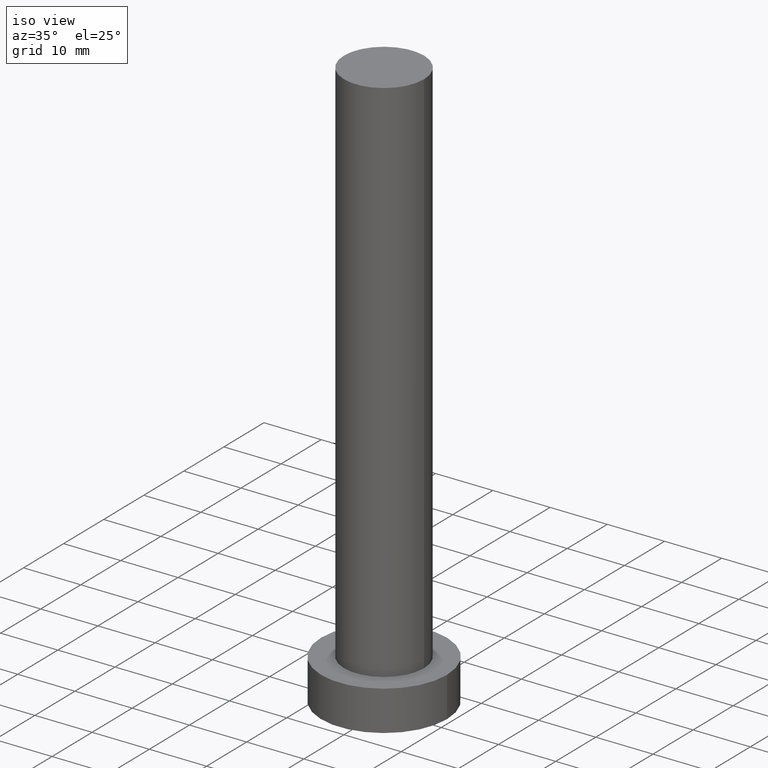
[diagram: clean part render]
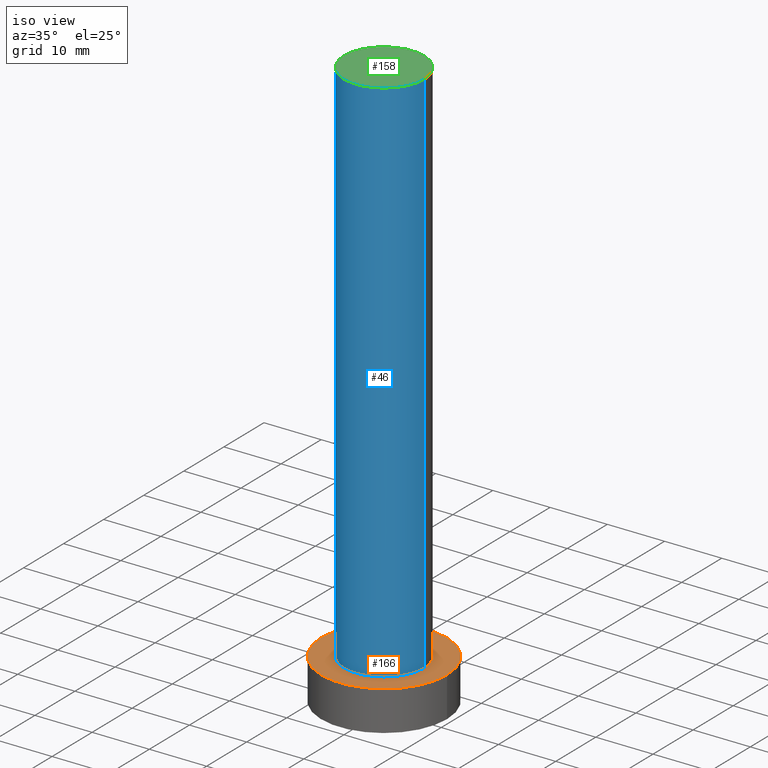
[diagram: same view with three faces highlighted in distinct colors, each labeled with its STEP entity id]
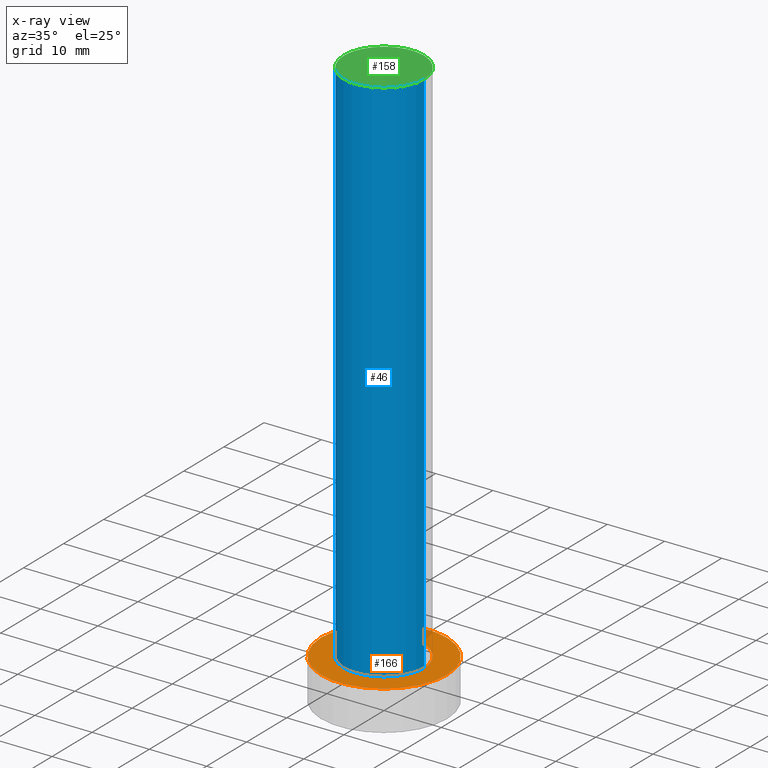
[diagram: x-ray of the same camera — body ghosted, the three highlighted faces saturated]
A machine part, iso view with three faces highlighted in distinct colors.
The next image is the same camera in x-ray (body ghosted, the three faces saturated) — at least one of them is partly hidden behind the body in this view.
Their STEP definitions:

[orange] entity #166 — the highlighted planar face has unit normal (0, 0, 1).
#18 = ORIENTED_EDGE ( 'NONE', *, *, #219, .T. ) ;
#19 = AXIS2_PLACEMENT_3D ( 'NONE', #209, #184, #129 ) ;
#25 = CARTESIAN_POINT ( 'NONE',  ( 0.000000000000000000, 0.000000000000000000, 7.000000000000000000 ) ) ;
#31 = FACE_BOUND ( 'NONE', #119, .T. ) ;
#49 = DIRECTION ( 'NONE',  ( 1.000000000000000000, 0.000000000000000000, 0.000000000000000000 ) ) ;
#50 = CARTESIAN_POINT ( 'NONE',  ( -7.000000000000000888, 0.000000000000000000, 7.000000000000000000 ) ) ;
#62 = CIRCLE ( 'NONE', #134, 11.00000000000000000 ) ;
#68 = AXIS2_PLACEMENT_3D ( 'NONE', #86, #162, #247 ) ;
#76 = VERTEX_POINT ( 'NONE', #206 ) ;
#81 = DIRECTION ( 'NONE',  ( 0.000000000000000000, 0.000000000000000000, 1.000000000000000000 ) ) ;
#84 = DIRECTION ( 'NONE',  ( 0.000000000000000000, 0.000000000000000000, 1.000000000000000000 ) ) ;
#86 = CARTESIAN_POINT ( 'NONE',  ( 0.000000000000000000, 0.000000000000000000, 7.000000000000000000 ) ) ;
#87 = CIRCLE ( 'NONE', #145, 7.000000000000000888 ) ;
#100 = ORIENTED_EDGE ( 'NONE', *, *, #178, .T. ) ;
#106 = CARTESIAN_POINT ( 'NONE',  ( 0.000000000000000000, 0.000000000000000000, 7.000000000000000000 ) ) ;
#115 = EDGE_CURVE ( 'NONE', #238, #237, #87, .T. ) ;
#116 = CIRCLE ( 'NONE', #68, 11.00000000000000000 ) ;
#119 = EDGE_LOOP ( 'NONE', ( #174, #138 ) ) ;
#121 = EDGE_LOOP ( 'NONE', ( #18, #100 ) ) ;
#128 = DIRECTION ( 'NONE',  ( 1.000000000000000000, 0.000000000000000000, -0.000000000000000000 ) ) ;
#129 = DIRECTION ( 'NONE',  ( 1.000000000000000000, 0.000000000000000000, 0.000000000000000000 ) ) ;
#131 = PLANE ( 'NONE',  #132 ) ;
#132 = AXIS2_PLACEMENT_3D ( 'NONE', #208, #212, #128 ) ;
#134 = AXIS2_PLACEMENT_3D ( 'NONE', #106, #84, #167 ) ;
#138 = ORIENTED_EDGE ( 'NONE', *, *, #115, .F. ) ;
#143 = FACE_OUTER_BOUND ( 'NONE', #121, .T. ) ;
#145 = AXIS2_PLACEMENT_3D ( 'NONE', #25, #81, #49 ) ;
#162 = DIRECTION ( 'NONE',  ( 0.000000000000000000, 0.000000000000000000, 1.000000000000000000 ) ) ;
#166 = ADVANCED_FACE ( 'NONE', ( #31, #143 ), #131, .T. ) ;
#167 = DIRECTION ( 'NONE',  ( 1.000000000000000000, 0.000000000000000000, 0.000000000000000000 ) ) ;
#174 = ORIENTED_EDGE ( 'NONE', *, *, #194, .F. ) ;
#178 = EDGE_CURVE ( 'NONE', #76, #232, #62, .T. ) ;
#184 = DIRECTION ( 'NONE',  ( 0.000000000000000000, 0.000000000000000000, 1.000000000000000000 ) ) ;
#194 = EDGE_CURVE ( 'NONE', #237, #238, #242, .T. ) ;
#206 = CARTESIAN_POINT ( 'NONE',  ( 11.00000000000000000, 1.347111479062088405E-15, 7.000000000000000000 ) ) ;
#208 = CARTESIAN_POINT ( 'NONE',  ( 0.000000000000000000, 0.000000000000000000, 7.000000000000000000 ) ) ;
#209 = CARTESIAN_POINT ( 'NONE',  ( 0.000000000000000000, 0.000000000000000000, 7.000000000000000000 ) ) ;
#212 = DIRECTION ( 'NONE',  ( 0.000000000000000000, 0.000000000000000000, 1.000000000000000000 ) ) ;
#219 = EDGE_CURVE ( 'NONE', #232, #76, #116, .T. ) ;
#229 = CARTESIAN_POINT ( 'NONE',  ( 7.000000000000000888, 8.572527594031472204E-16, 7.000000000000000000 ) ) ;
#232 = VERTEX_POINT ( 'NONE', #245 ) ;
#237 = VERTEX_POINT ( 'NONE', #50 ) ;
#238 = VERTEX_POINT ( 'NONE', #229 ) ;
#242 = CIRCLE ( 'NONE', #19, 7.000000000000000888 ) ;
#245 = CARTESIAN_POINT ( 'NONE',  ( -11.00000000000000000, 0.000000000000000000, 7.000000000000000000 ) ) ;
#247 = DIRECTION ( 'NONE',  ( 1.000000000000000000, 0.000000000000000000, 0.000000000000000000 ) ) ;

[blue] entity #46 — the highlighted cylindrical surface (partial cylindrical patch) has radius 7 mm, axis along (-0, -0, -1).
#1 = LINE ( 'NONE', #22, #165 ) ;
#6 = VERTEX_POINT ( 'NONE', #105 ) ;
#11 = CIRCLE ( 'NONE', #196, 7.000000000000000888 ) ;
#19 = AXIS2_PLACEMENT_3D ( 'NONE', #209, #184, #129 ) ;
#21 = DIRECTION ( 'NONE',  ( -0.000000000000000000, -0.000000000000000000, -1.000000000000000000 ) ) ;
#22 = CARTESIAN_POINT ( 'NONE',  ( -7.000000000000000888, 0.000000000000000000, 100.0000000000000000 ) ) ;
#32 = VECTOR ( 'NONE', #177, 1000.000000000000000 ) ;
#41 = EDGE_CURVE ( 'NONE', #140, #238, #102, .T. ) ;
#46 = ADVANCED_FACE ( 'NONE', ( #104 ), #225, .T. ) ;
#50 = CARTESIAN_POINT ( 'NONE',  ( -7.000000000000000888, 0.000000000000000000, 7.000000000000000000 ) ) ;
#58 = ORIENTED_EDGE ( 'NONE', *, *, #41, .F. ) ;
#67 = DIRECTION ( 'NONE',  ( 0.000000000000000000, 0.000000000000000000, 1.000000000000000000 ) ) ;
#78 = DIRECTION ( 'NONE',  ( -0.000000000000000000, -0.000000000000000000, -1.000000000000000000 ) ) ;
#80 = CARTESIAN_POINT ( 'NONE',  ( 0.000000000000000000, 0.000000000000000000, 100.0000000000000000 ) ) ;
#89 = CARTESIAN_POINT ( 'NONE',  ( 7.000000000000000888, 8.572527594031472204E-16, 100.0000000000000000 ) ) ;
#90 = CARTESIAN_POINT ( 'NONE',  ( 0.000000000000000000, 0.000000000000000000, 100.0000000000000000 ) ) ;
#96 = EDGE_CURVE ( 'NONE', #6, #237, #1, .T. ) ;
#102 = LINE ( 'NONE', #221, #32 ) ;
#104 = FACE_OUTER_BOUND ( 'NONE', #215, .T. ) ;
#105 = CARTESIAN_POINT ( 'NONE',  ( -7.000000000000000888, 0.000000000000000000, 100.0000000000000000 ) ) ;
#107 = AXIS2_PLACEMENT_3D ( 'NONE', #80, #21, #157 ) ;
#126 = ORIENTED_EDGE ( 'NONE', *, *, #142, .F. ) ;
#127 = DIRECTION ( 'NONE',  ( 1.000000000000000000, 0.000000000000000000, 0.000000000000000000 ) ) ;
#129 = DIRECTION ( 'NONE',  ( 1.000000000000000000, 0.000000000000000000, 0.000000000000000000 ) ) ;
#139 = ORIENTED_EDGE ( 'NONE', *, *, #194, .T. ) ;
#140 = VERTEX_POINT ( 'NONE', #89 ) ;
#142 = EDGE_CURVE ( 'NONE', #6, #140, #11, .T. ) ;
#157 = DIRECTION ( 'NONE',  ( -1.000000000000000000, 0.000000000000000000, 0.000000000000000000 ) ) ;
#161 = ORIENTED_EDGE ( 'NONE', *, *, #96, .T. ) ;
#165 = VECTOR ( 'NONE', #78, 1000.000000000000000 ) ;
#177 = DIRECTION ( 'NONE',  ( -0.000000000000000000, -0.000000000000000000, -1.000000000000000000 ) ) ;
#184 = DIRECTION ( 'NONE',  ( 0.000000000000000000, 0.000000000000000000, 1.000000000000000000 ) ) ;
#194 = EDGE_CURVE ( 'NONE', #237, #238, #242, .T. ) ;
#196 = AXIS2_PLACEMENT_3D ( 'NONE', #90, #67, #127 ) ;
#209 = CARTESIAN_POINT ( 'NONE',  ( 0.000000000000000000, 0.000000000000000000, 7.000000000000000000 ) ) ;
#215 = EDGE_LOOP ( 'NONE', ( #58, #126, #161, #139 ) ) ;
#221 = CARTESIAN_POINT ( 'NONE',  ( 7.000000000000000888, 8.572527594031472204E-16, 100.0000000000000000 ) ) ;
#225 = CYLINDRICAL_SURFACE ( 'NONE', #107, 7.000000000000000888 ) ;
#229 = CARTESIAN_POINT ( 'NONE',  ( 7.000000000000000888, 8.572527594031472204E-16, 7.000000000000000000 ) ) ;
#237 = VERTEX_POINT ( 'NONE', #50 ) ;
#238 = VERTEX_POINT ( 'NONE', #229 ) ;
#242 = CIRCLE ( 'NONE', #19, 7.000000000000000888 ) ;

[green] entity #158 — the highlighted planar face has unit normal (0, 0, 1).
#6 = VERTEX_POINT ( 'NONE', #105 ) ;
#11 = CIRCLE ( 'NONE', #196, 7.000000000000000888 ) ;
#14 = AXIS2_PLACEMENT_3D ( 'NONE', #83, #179, #99 ) ;
#29 = DIRECTION ( 'NONE',  ( 1.000000000000000000, 0.000000000000000000, -0.000000000000000000 ) ) ;
#34 = CARTESIAN_POINT ( 'NONE',  ( 0.000000000000000000, 0.000000000000000000, 100.0000000000000000 ) ) ;
#55 = EDGE_CURVE ( 'NONE', #140, #6, #222, .T. ) ;
#67 = DIRECTION ( 'NONE',  ( 0.000000000000000000, 0.000000000000000000, 1.000000000000000000 ) ) ;
#69 = PLANE ( 'NONE',  #175 ) ;
#83 = CARTESIAN_POINT ( 'NONE',  ( 0.000000000000000000, 0.000000000000000000, 100.0000000000000000 ) ) ;
#89 = CARTESIAN_POINT ( 'NONE',  ( 7.000000000000000888, 8.572527594031472204E-16, 100.0000000000000000 ) ) ;
#90 = CARTESIAN_POINT ( 'NONE',  ( 0.000000000000000000, 0.000000000000000000, 100.0000000000000000 ) ) ;
#99 = DIRECTION ( 'NONE',  ( 1.000000000000000000, 0.000000000000000000, 0.000000000000000000 ) ) ;
#105 = CARTESIAN_POINT ( 'NONE',  ( -7.000000000000000888, 0.000000000000000000, 100.0000000000000000 ) ) ;
#127 = DIRECTION ( 'NONE',  ( 1.000000000000000000, 0.000000000000000000, 0.000000000000000000 ) ) ;
#137 = ORIENTED_EDGE ( 'NONE', *, *, #142, .T. ) ;
#140 = VERTEX_POINT ( 'NONE', #89 ) ;
#142 = EDGE_CURVE ( 'NONE', #6, #140, #11, .T. ) ;
#144 = DIRECTION ( 'NONE',  ( 0.000000000000000000, 0.000000000000000000, 1.000000000000000000 ) ) ;
#158 = ADVANCED_FACE ( 'NONE', ( #207 ), #69, .T. ) ;
#159 = ORIENTED_EDGE ( 'NONE', *, *, #55, .T. ) ;
#175 = AXIS2_PLACEMENT_3D ( 'NONE', #34, #144, #29 ) ;
#179 = DIRECTION ( 'NONE',  ( 0.000000000000000000, 0.000000000000000000, 1.000000000000000000 ) ) ;
#196 = AXIS2_PLACEMENT_3D ( 'NONE', #90, #67, #127 ) ;
#207 = FACE_OUTER_BOUND ( 'NONE', #240, .T. ) ;
#222 = CIRCLE ( 'NONE', #14, 7.000000000000000888 ) ;
#240 = EDGE_LOOP ( 'NONE', ( #137, #159 ) ) ;